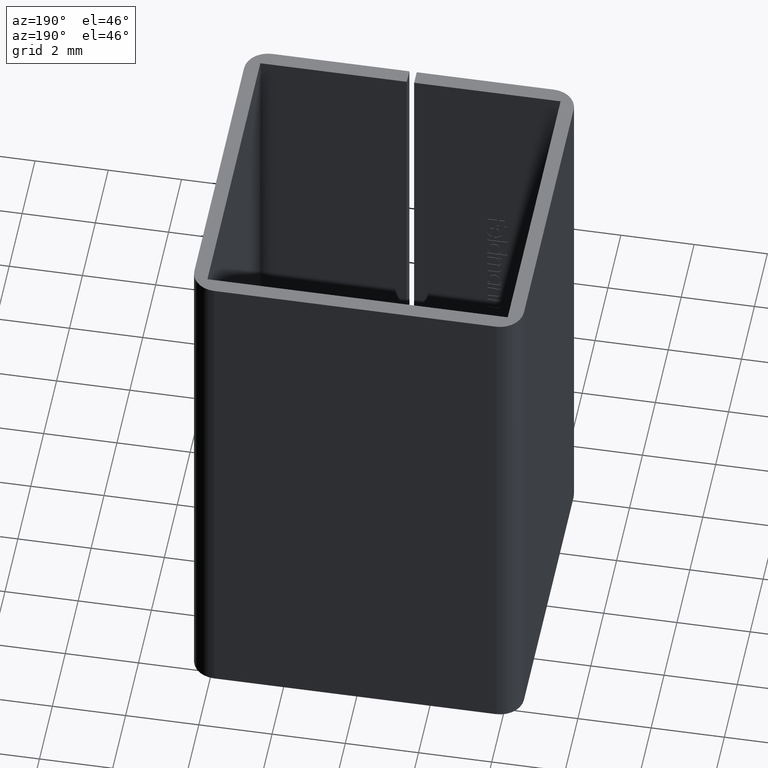
[diagram: clean part render]
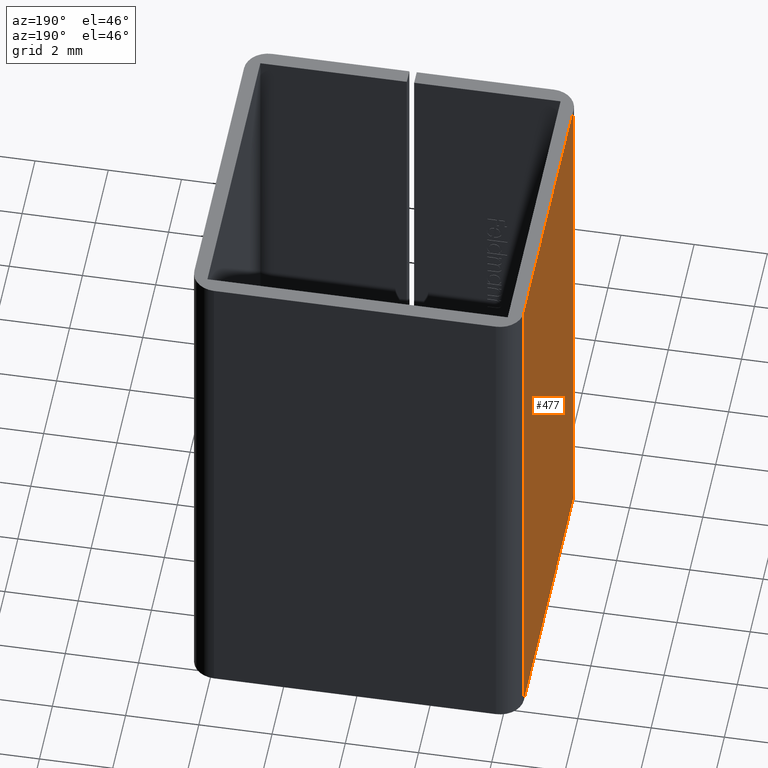
[diagram: same view with one face highlighted and labeled with its STEP entity id]
A machine part, auxiliary view. The second image highlights one B-rep face of the part: STEP entity #477.
In plain terms, the highlighted planar face has unit normal (1, 0, -0).
Its self-contained STEP definition (entity closure, byte-faithful):
#477 = ADVANCED_FACE ( 'NONE', ( #8312 ), #7675, .F. ) ;
#492 = DIRECTION ( 'NONE',  ( 1.000000000000000000, 9.637352644315596475E-17, -0.000000000000000000 ) ) ;
#650 = LINE ( 'NONE', #6953, #7406 ) ;
#698 = EDGE_CURVE ( 'NONE', #6482, #1291, #650, .T. ) ;
#1202 = LINE ( 'NONE', #9406, #2568 ) ;
#1291 = VERTEX_POINT ( 'NONE', #3809 ) ;
#1580 = EDGE_CURVE ( 'NONE', #9911, #6482, #1202, .T. ) ;
#2164 = CARTESIAN_POINT ( 'NONE',  ( -4.500000000000000000, -3.849999999999999201, 7.500000000000000000 ) ) ;
#2568 = VECTOR ( 'NONE', #5406, 1000.000000000000000 ) ;
#2911 = AXIS2_PLACEMENT_3D ( 'NONE', #4501, #492, #6893 ) ;
#3645 = VECTOR ( 'NONE', #8658, 1000.000000000000000 ) ;
#3773 = CARTESIAN_POINT ( 'NONE',  ( -4.500000000000000888, 4.500000000000000888, 7.500000000000000000 ) ) ;
#3809 = CARTESIAN_POINT ( 'NONE',  ( -4.500000000000000000, -3.849999999999999201, -7.500000000000000000 ) ) ;
#4412 = EDGE_LOOP ( 'NONE', ( #4445, #6769, #6093, #6949 ) ) ;
#4445 = ORIENTED_EDGE ( 'NONE', *, *, #698, .T. ) ;
#4501 = CARTESIAN_POINT ( 'NONE',  ( -4.500000000000000888, 4.500000000000000888, 7.500000000000000000 ) ) ;
#5236 = EDGE_CURVE ( 'NONE', #1291, #7717, #9015, .T. ) ;
#5406 = DIRECTION ( 'NONE',  ( 0.000000000000000000, 0.000000000000000000, -1.000000000000000000 ) ) ;
#5852 = EDGE_CURVE ( 'NONE', #9911, #7717, #7137, .T. ) ;
#6093 = ORIENTED_EDGE ( 'NONE', *, *, #5852, .F. ) ;
#6482 = VERTEX_POINT ( 'NONE', #8799 ) ;
#6769 = ORIENTED_EDGE ( 'NONE', *, *, #5236, .T. ) ;
#6844 = VECTOR ( 'NONE', #7823, 1000.000000000000000 ) ;
#6893 = DIRECTION ( 'NONE',  ( -9.637352644315596475E-17, 1.000000000000000000, 0.000000000000000000 ) ) ;
#6949 = ORIENTED_EDGE ( 'NONE', *, *, #1580, .T. ) ;
#6953 = CARTESIAN_POINT ( 'NONE',  ( -4.500000000000000888, 4.500000000000000888, -7.500000000000000000 ) ) ;
#7137 = LINE ( 'NONE', #3773, #3645 ) ;
#7382 = CARTESIAN_POINT ( 'NONE',  ( -4.500000000000000000, -3.849999999999999201, 7.500000000000000000 ) ) ;
#7406 = VECTOR ( 'NONE', #7730, 1000.000000000000000 ) ;
#7675 = PLANE ( 'NONE',  #2911 ) ;
#7717 = VERTEX_POINT ( 'NONE', #7382 ) ;
#7730 = DIRECTION ( 'NONE',  ( 9.637352644315595243E-17, -1.000000000000000000, 0.000000000000000000 ) ) ;
#7823 = DIRECTION ( 'NONE',  ( 0.000000000000000000, -0.000000000000000000, 1.000000000000000000 ) ) ;
#7880 = CARTESIAN_POINT ( 'NONE',  ( -4.500000000000000888, 3.850000000000000533, 7.500000000000000000 ) ) ;
#8312 = FACE_OUTER_BOUND ( 'NONE', #4412, .T. ) ;
#8658 = DIRECTION ( 'NONE',  ( 9.637352644315595243E-17, -1.000000000000000000, 0.000000000000000000 ) ) ;
#8799 = CARTESIAN_POINT ( 'NONE',  ( -4.500000000000000888, 3.850000000000000533, -7.500000000000000000 ) ) ;
#9015 = LINE ( 'NONE', #2164, #6844 ) ;
#9406 = CARTESIAN_POINT ( 'NONE',  ( -4.500000000000000888, 3.850000000000000533, -7.500000000000000000 ) ) ;
#9911 = VERTEX_POINT ( 'NONE', #7880 ) ;